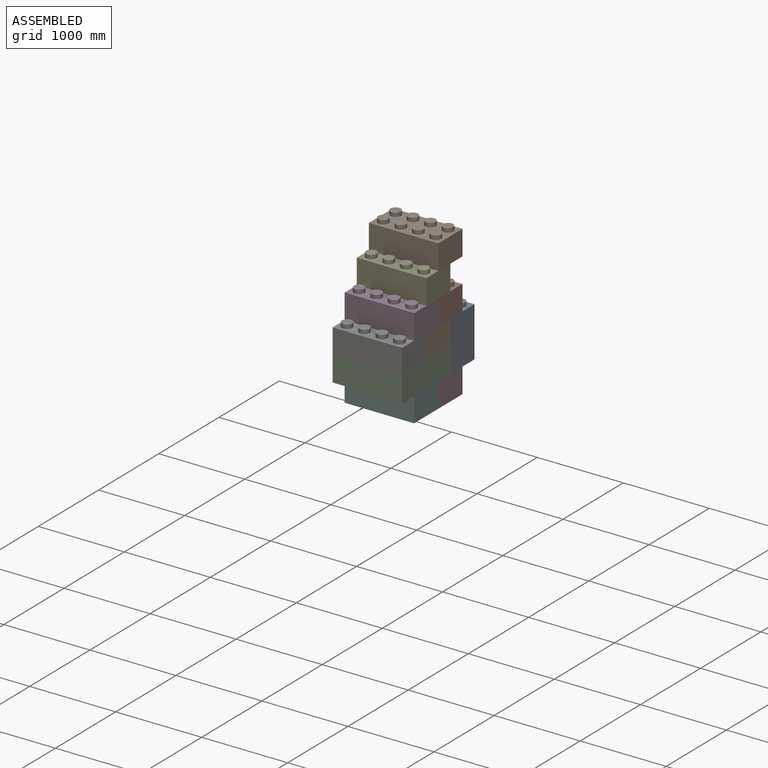
[diagram: assembled view]
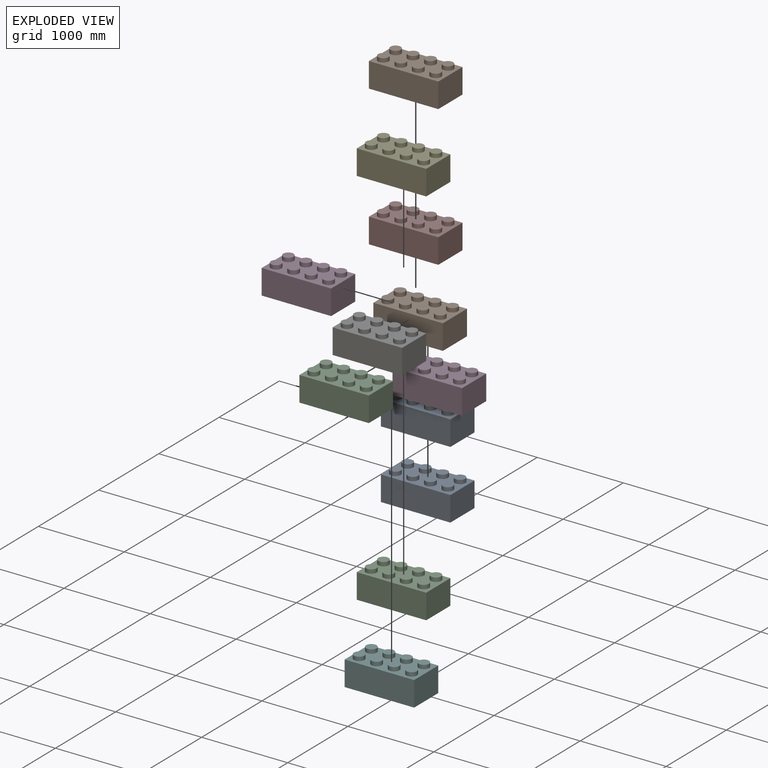
[diagram: exploded view]
GUIDED TOUR — MATED ASSEMBLY (Onshape document 39877093bb160a37c1627cb5, AutoMate assembly 39877093bb160a37c1627cb5_6b8d1fcd9c8a42bb2dc55720_84a89f708c3a7135c52a8057_default)

This assembly has 12 components, labeled P0..P11 below (a component is one placed occurrence of a part; the same part can appear more than once), held together by 27 mates. A mate is a constraint between two components; its type names the relative motion it leaves free:
  PLANAR — leaves sliding in the plane through the listed point (normal = the listed direction) and rotation about that normal free.
Axis/direction vectors are unit vectors and 'through' points are millimeter coordinates, both in the assembly's world frame.

MATES
  1. PLANAR "Planar 2": P11 <-> P7, direction (-1.000, 0.000, 0.000) through (-490.59, -152.22, 704.03) mm
  2. PLANAR "Planar 6": P11 <-> P7, direction (0.000, 0.000, -1.000) through (-460.11, 17.96, 559.25) mm
  3. PLANAR "Planar 1": P10 <-> P2, direction (0.000, 1.000, 0.000) through (-86.73, -152.22, 124.91) mm
  4. PLANAR "Planar 12": P4 <-> P11, direction (0.000, 0.000, -1.000) through (-86.73, 48.44, 848.81) mm
  5. PLANAR "Planar 2": P5 <-> P3, direction (-1.000, 0.000, 0.000) through (-490.59, -152.22, -164.65) mm
  6. PLANAR "Planar 10": P5 <-> P10, direction (0.000, 0.000, 1.000) through (-86.73, -152.22, -19.87) mm
  7. PLANAR "Planar 6": P6 <-> P1, direction (0.000, 0.000, -1.000) through (-460.11, -182.70, 269.69) mm
  8. PLANAR "Planar 5": P0 <-> P2, direction (0.000, 0.000, -1.000) through (-460.11, 279.58, -19.87) mm
  9. PLANAR "Planar 14": P9 <-> P4, direction (0.000, 0.000, -1.000) through (-86.73, 249.10, 1138.37) mm
  10. PLANAR "Planar 15": P9 <-> P4, direction (0.000, -1.000, 0.000) through (-86.73, 48.44, 1283.15) mm
  11. PLANAR "Planar 3": P0 <-> P2, direction (0.000, -1.000, 0.000) through (-86.73, 249.10, 124.91) mm
  12. PLANAR "Planar 9": P11 <-> P6, direction (0.000, -1.000, 0.000) through (-86.73, -352.88, 704.03) mm
  13. PLANAR "Planar 13": P4 <-> P11, direction (0.000, -1.000, 0.000) through (-86.73, -152.22, 993.59) mm
  14. PLANAR "Planar 7": P8 <-> P0, direction (0.000, 0.000, -1.000) through (-86.73, 449.76, 269.69) mm
  15. PLANAR "Planar 1": P6 <-> P1, direction (0.000, 1.000, 0.000) through (-86.73, -152.22, 414.47) mm
  16. PLANAR "Planar 5": P8 <-> P1, direction (0.000, 0.000, -1.000) through (-460.11, 279.58, 269.69) mm
  17. PLANAR "Planar 2": P10 <-> P2, direction (-1.000, 0.000, 0.000) through (-490.59, -352.88, 124.91) mm
  18. PLANAR "Planar 4": P8 <-> P1, direction (-1.000, 0.000, 0.000) through (-490.59, 449.76, 414.47) mm
  19. PLANAR "Planar 3": P8 <-> P1, direction (0.000, -1.000, 0.000) through (-86.73, 249.10, 414.47) mm
  20. PLANAR "Planar 4": P0 <-> P2, direction (-1.000, 0.000, 0.000) through (-490.59, 449.76, 124.91) mm
  21. PLANAR "Planar 1": P11 <-> P7, direction (0.000, 1.000, 0.000) through (-86.73, 48.44, 704.03) mm
  22. PLANAR "Planar 6": P10 <-> P2, direction (0.000, 0.000, -1.000) through (-460.11, -182.70, -19.87) mm
  23. PLANAR "Planar 6": P5 <-> P3, direction (0.000, 0.000, -1.000) through (-460.11, 17.96, -309.43) mm
  24. PLANAR "Planar 1": P5 <-> P3, direction (0.000, 1.000, 0.000) through (-86.73, 48.44, -164.65) mm
  25. PLANAR "Planar 11": P5 <-> P10, direction (0.000, -1.000, 0.000) through (-86.73, -352.88, -164.65) mm
  26. PLANAR "Planar 8": P7 <-> P1, direction (0.000, 0.000, -1.000) through (-86.73, 249.10, 559.25) mm
  27. PLANAR "Planar 2": P6 <-> P1, direction (-1.000, 0.000, 0.000) through (-490.59, -352.88, 414.47) mm

ASSEMBLY ORDER
  1. P6 — the base component [order verified]
  2. P1 [order verified]
  3. P8 [order verified]
  4. P0 [order verified]
  5. P2 [order verified]
  6. P10 [order verified]
  7. P7 [order verified]
  8. P11 [order verified]
  9. P4 [order verified]
  10. P3 [order verified]
  11. P5 [order verified]
  12. P9 [order verified]
Order-tag legend:
  [order verified] — this step's position reverses a verified removal order: the component was checked to insert without passing through the ones already placed.

Of the 12 components, 12 carry the full construction recipe — the FeatureScript program that regenerates the part's solid from scratch; the rest are supplied as boundary geometry only.
Each toured component is shown spotlighted twice — in the assembled view, then in the exploded view, where a leader line traces a displaced component back to its assembled socket (saturated green if recipe-attached, orange if geometry-only; every other component desaturated gray) — followed by its recipe or geometry summary and the mates that hold it.
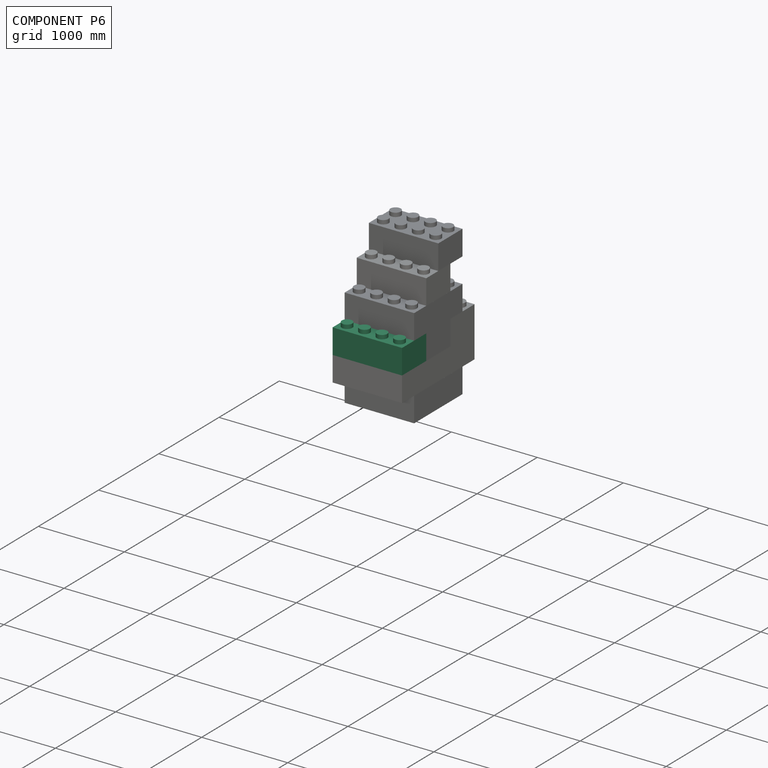
[diagram: component P6 — assembled]
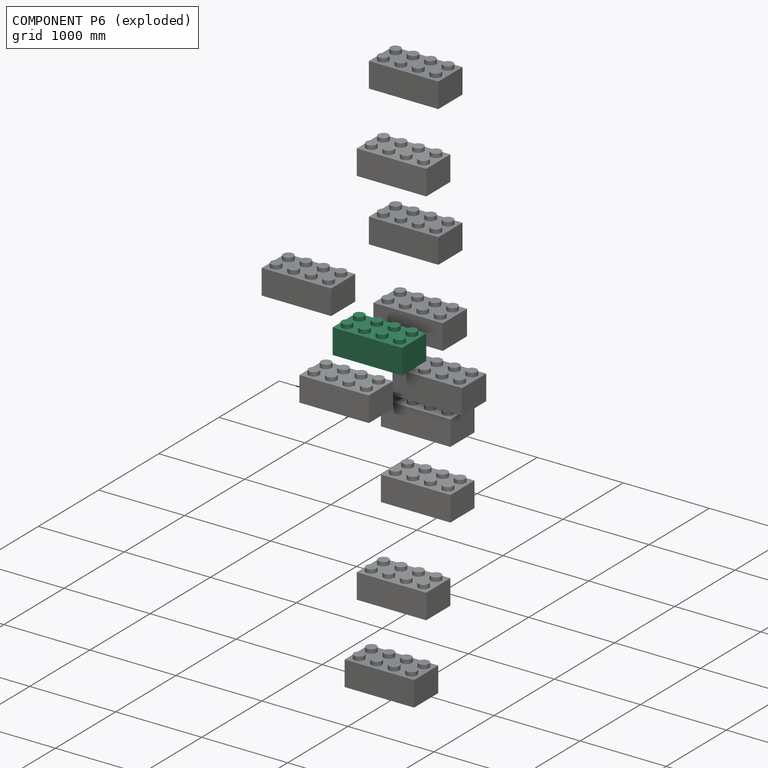
[diagram: component P6 — exploded]
COMPONENT P6 — same part as P0 (CADFS 00420289); its construction recipe is shown at P0.
Held by: PLANAR mate "Planar 6" to P1; PLANAR mate "Planar 9" to P11; PLANAR mate "Planar 1" to P1; PLANAR mate "Planar 2" to P1.
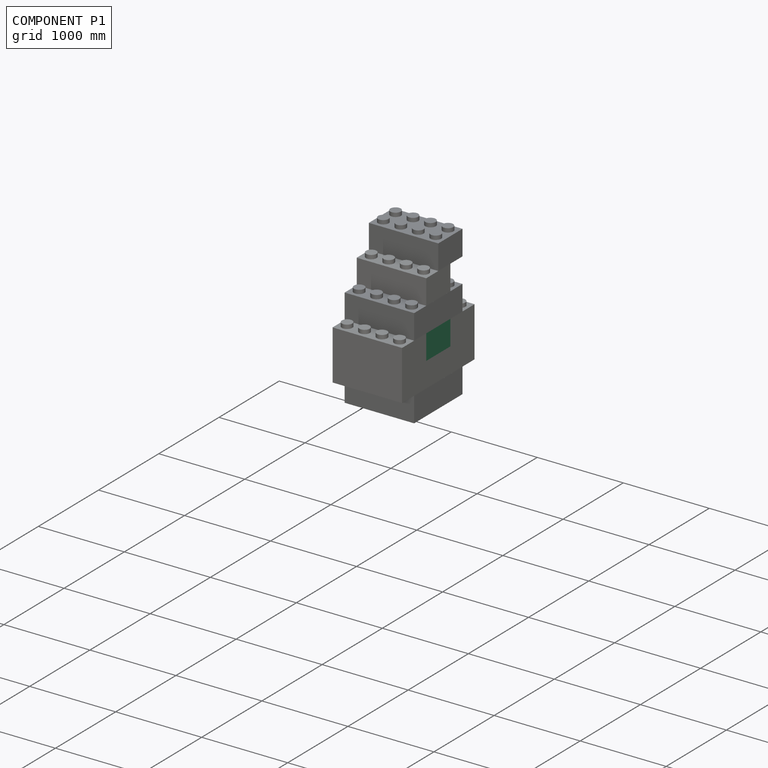
[diagram: component P1 — assembled]
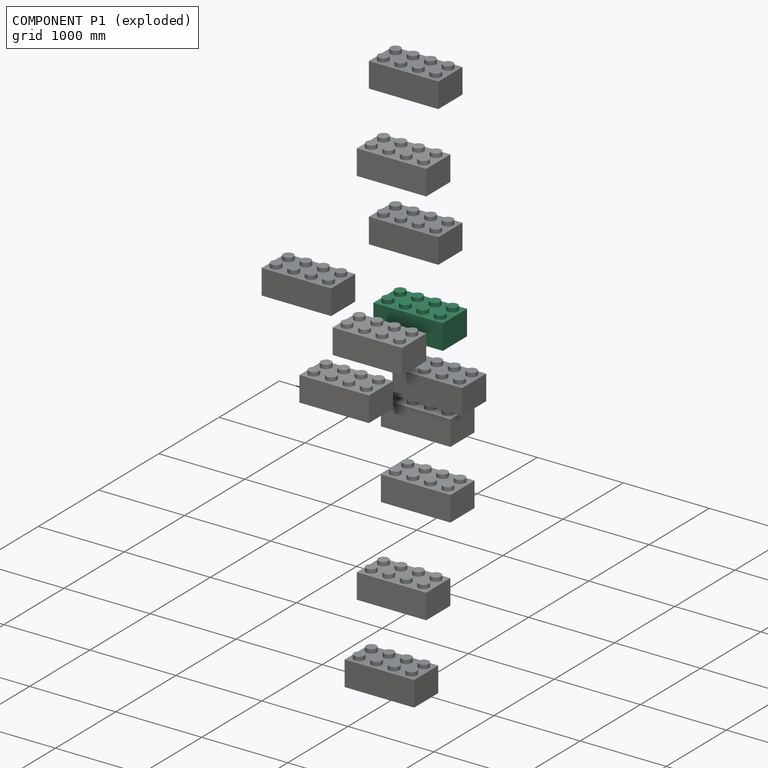
[diagram: component P1 — exploded]
COMPONENT P1 — same part as P0 (CADFS 00420289); its construction recipe is shown at P0.
Held by: PLANAR mate "Planar 6" to P6; PLANAR mate "Planar 1" to P6; PLANAR mate "Planar 5" to P8; PLANAR mate "Planar 4" to P8; PLANAR mate "Planar 3" to P8; PLANAR mate "Planar 8" to P7; PLANAR mate "Planar 2" to P6.
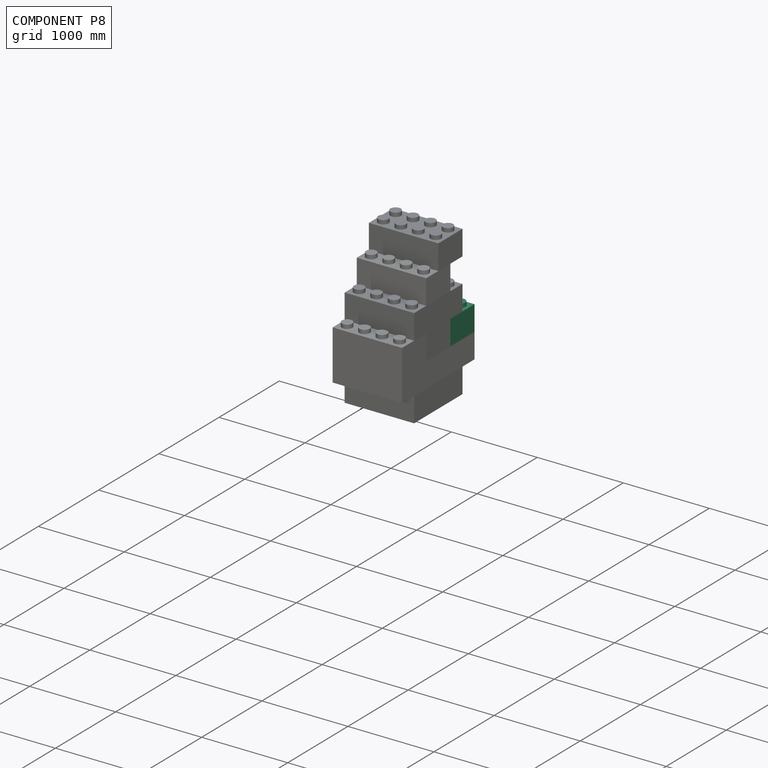
[diagram: component P8 — assembled]
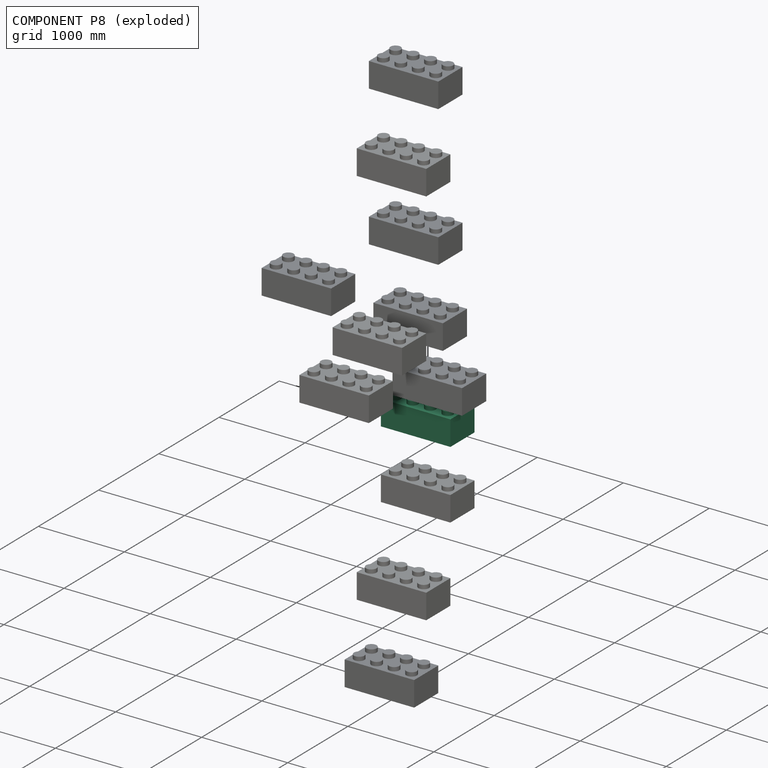
[diagram: component P8 — exploded]
COMPONENT P8 — same part as P0 (CADFS 00420289); its construction recipe is shown at P0.
Held by: PLANAR mate "Planar 7" to P0; PLANAR mate "Planar 5" to P1; PLANAR mate "Planar 4" to P1; PLANAR mate "Planar 3" to P1.
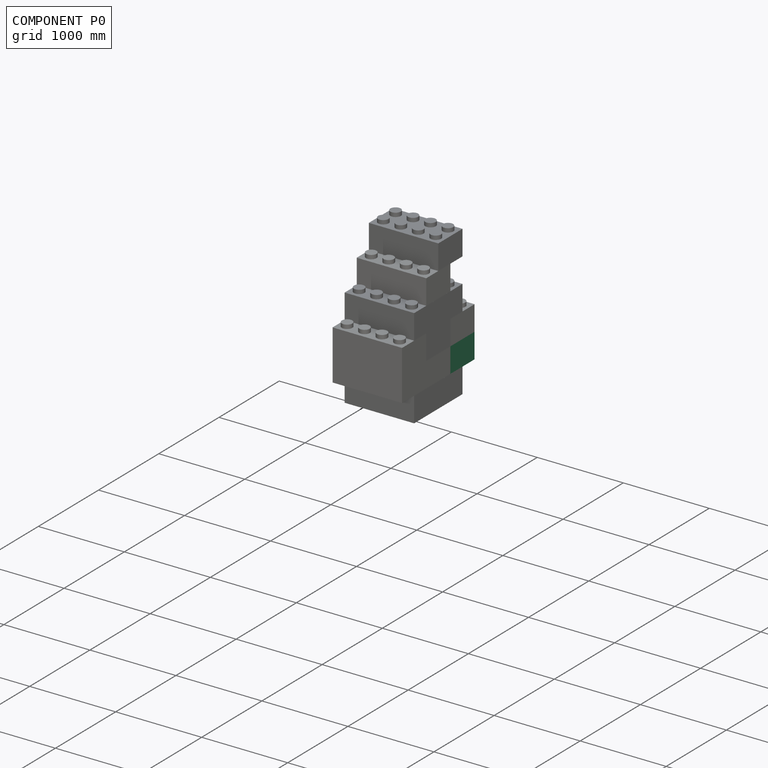
[diagram: component P0 — assembled]
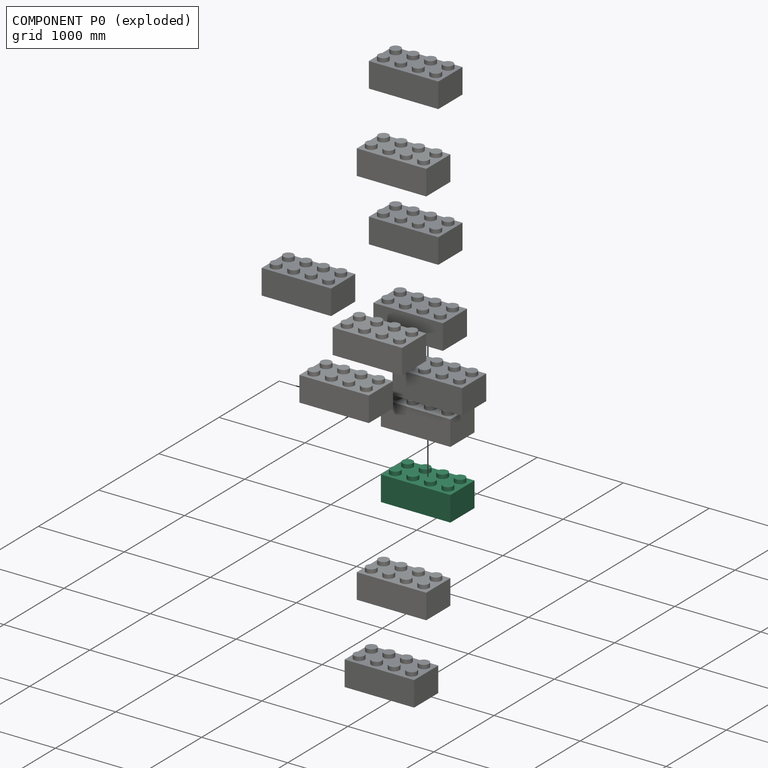
[diagram: component P0 — exploded]
COMPONENT P0 — recipe-attached (CADFS 00420289, mesh-verified: the recipe's output STEP matches this component's geometry to below the mesh-comparison resolution (tessellation chordal tolerance ~1.44 mm)).
Held by: PLANAR mate "Planar 5" to P2; PLANAR mate "Planar 3" to P2; PLANAR mate "Planar 7" to P8; PLANAR mate "Planar 4" to P2.
Construction recipe (FeatureScript — the CAD program that rebuilds this solid; sketch coordinates are in the units given by the * unit suffixes, e.g. mm):

FeatureScript 1511;
import(path : "onshape/std/geometry.fs", version : "1511.0");
import(path : "onshape/std/common.fs", version : "1511.0");
const mm = millimeter;
const VERTEX = EntityType.VERTEX;
const EDGE = EntityType.EDGE;
const FACE = EntityType.FACE;
const BODY = EntityType.BODY;
function v(x, y){return vector(x, y);}
function OD(order){return orderDisambiguation(order);}
function OSD(set){return originalSetDisambiguation(set);}
function TD(topology){return topologyDisambiguation(topology);}
function TDD(query){return trueDependencyDisambiguation(query);}
function sQuery(a, b, c) {return sketchEntityQuery(a, b, c);}

annotation { "Feature Type Name" : "Feature", "Feature Type Description" : "" }
export const myFeature = defineFeature(function(context is Context, id is Id, definition is map)
    precondition{}
    {
        {
            var Q0;
            Q0=qCreatedBy(makeId("Top.planeOp"),FACE);
            var sketch = newSketch(context, id + "F0", { "sketchPlane" : qUnion([Q0])});
            skLineSegment(sketch, "E0.bottom", {"start": v(403.86, 200.66) * mm, "end": v(-403.86, 200.66) * mm});
            skLineSegment(sketch, "E0.top", {"start": v(403.86, -200.66) * mm, "end": v(-403.86, -200.66) * mm});
            skLineSegment(sketch, "E0.left", {"start": v(403.86, 200.66) * mm, "end": v(403.86, -200.66) * mm});
            skLineSegment(sketch, "E0.right", {"start": v(-403.86, 200.66) * mm, "end": v(-403.86, -200.66) * mm});
            skPoint(sketch, "E0.middle", {"position": v(0, 0) * mm});
            skSolve(sketch);
        }
        {
            var Q0;
            Q0=makeQuery(id+"F0.imprint","IMPRINT",FACE,{"disambiguationData":[TD([[makeQuery(id+"F0.imprint","IMPRINT",EDGE,{"derivedFrom":sQuery(id+"F0.wireOp",EDGE,"E0.bottom")}),1.0]])]});
            extrude(context, id + "F1", {"entities" : qUnion([Q0]), "depth" : 289.56 * mm});
        }
        {
            var Q0;
            Q0=makeQuery(id+"F1.opExtrude","CAP_FACE",FACE,{"disambiguationData":[OSD([sQuery(id+"F0.wireOp",EDGE,"E0.bottom"),sQuery(id+"F0.wireOp",EDGE,"E0.top"),sQuery(id+"F0.wireOp",EDGE,"E0.left"),sQuery(id+"F0.wireOp",EDGE,"E0.right")])],"isStart":false});
            var sketch = newSketch(context, id + "F2", { "sketchPlane" : qUnion([Q0])});
            skCircle(sketch, "E1", {"center": v(-304.8, -101.6) * mm, "radius": 60.96 * mm});
            skCircle(sketch, "E2.1.0.0", {"center": v(-101.6, -101.6) * mm, "radius": 60.96 * mm});
            skCircle(sketch, "E2.2.0.0", {"center": v(101.6, -101.6) * mm, "radius": 60.96 * mm});
            skCircle(sketch, "E2.3.0.0", {"center": v(304.8, -101.6) * mm, "radius": 60.96 * mm});
            skLineSegment(sketch, "E2.direction1", {"start": v(-304.8, -101.6) * mm, "end": v(-101.6, -101.6) * mm, "construction": true});
            skCircle(sketch, "E3.0.1.0", {"center": v(-304.8, 101.6) * mm, "radius": 60.96 * mm});
            skLineSegment(sketch, "E3.direction1", {"start": v(-304.8, -101.6) * mm, "end": v(-304.8, -101.6) * mm});
            skLineSegment(sketch, "E3.direction2", {"start": v(-304.8, -101.6) * mm, "end": v(-304.8, 101.6) * mm, "construction": true});
            skCircle(sketch, "E4.1.0.0", {"center": v(-101.6, 101.6) * mm, "radius": 60.96 * mm});
            skCircle(sketch, "E4.2.0.0", {"center": v(101.6, 101.6) * mm, "radius": 60.96 * mm});
            skCircle(sketch, "E4.3.0.0", {"center": v(304.8, 101.6) * mm, "radius": 60.96 * mm});
            skLineSegment(sketch, "E4.direction1", {"start": v(-304.8, 101.6) * mm, "end": v(-101.6, 101.6) * mm, "construction": true});
            skSolve(sketch);
        }
        {
            var Q0;
            Q0=makeQuery(id+"F2.imprint","IMPRINT",FACE,{"disambiguationData":[TD([[makeQuery(id+"F2.imprint","IMPRINT",EDGE,{"derivedFrom":sQuery(id+"F2.wireOp",EDGE,"E1")}),1.0]])]});
            var Q1;
            Q1=makeQuery(id+"F2.imprint","IMPRINT",FACE,{"disambiguationData":[TD([[makeQuery(id+"F2.imprint","IMPRINT",EDGE,{"derivedFrom":sQuery(id+"F2.wireOp",EDGE,"E3.0.1.0")}),1.0]])]});
            var Q2;
            Q2=makeQuery(id+"F2.imprint","IMPRINT",FACE,{"disambiguationData":[TD([[makeQuery(id+"F2.imprint","IMPRINT",EDGE,{"derivedFrom":sQuery(id+"F2.wireOp",EDGE,"E4.1.0.0")}),1.0]])]});
            var Q3;
            Q3=makeQuery(id+"F2.imprint","IMPRINT",FACE,{"disambiguationData":[TD([[makeQuery(id+"F2.imprint","IMPRINT",EDGE,{"derivedFrom":sQuery(id+"F2.wireOp",EDGE,"E2.1.0.0")}),1.0]])]});
            var Q4;
            Q4=makeQuery(id+"F2.imprint","IMPRINT",FACE,{"disambiguationData":[TD([[makeQuery(id+"F2.imprint","IMPRINT",EDGE,{"derivedFrom":sQuery(id+"F2.wireOp",EDGE,"E2.2.0.0")}),1.0]])]});
            var Q5;
            Q5=makeQuery(id+"F2.imprint","IMPRINT",FACE,{"disambiguationData":[TD([[makeQuery(id+"F2.imprint","IMPRINT",EDGE,{"derivedFrom":sQuery(id+"F2.wireOp",EDGE,"E4.2.0.0")}),1.0]])]});
            var Q6;
            Q6=makeQuery(id+"F2.imprint","IMPRINT",FACE,{"disambiguationData":[TD([[makeQuery(id+"F2.imprint","IMPRINT",EDGE,{"derivedFrom":sQuery(id+"F2.wireOp",EDGE,"E4.3.0.0")}),1.0]])]});
            var Q7;
            Q7=makeQuery(id+"F2.imprint","IMPRINT",FACE,{"disambiguationData":[TD([[makeQuery(id+"F2.imprint","IMPRINT",EDGE,{"derivedFrom":sQuery(id+"F2.wireOp",EDGE,"E2.3.0.0")}),1.0]])]});
            extrude(context, id + "F3", {"entities" : qUnion([Q0, Q1, Q2, Q3, Q4, Q5, Q6, Q7]), "operationType" : NewBodyOperationType.ADD, "depth" : 45.72 * mm});
        }
        {
            var Q0;
            Q0=makeQuery(id+"F1.opExtrude","CAP_FACE",FACE,{"disambiguationData":[OSD([sQuery(id+"F0.wireOp",EDGE,"E0.bottom"),sQuery(id+"F0.wireOp",EDGE,"E0.top"),sQuery(id+"F0.wireOp",EDGE,"E0.left"),sQuery(id+"F0.wireOp",EDGE,"E0.right")])],"isStart":true});
            var sketch = newSketch(context, id + "F4", { "sketchPlane" : qUnion([Q0])});
            skLineSegment(sketch, "E5.bottom", {"start": v(373.38, 170.18) * mm, "end": v(-373.38, 170.18) * mm});
            skLineSegment(sketch, "E5.top", {"start": v(373.38, -170.18) * mm, "end": v(-373.38, -170.18) * mm});
            skLineSegment(sketch, "E5.left", {"start": v(373.38, 170.18) * mm, "end": v(373.38, -170.18) * mm});
            skLineSegment(sketch, "E5.right", {"start": v(-373.38, 170.18) * mm, "end": v(-373.38, -170.18) * mm});
            skPoint(sketch, "E5.middle", {"position": v(0, 0) * mm});
            skSolve(sketch);
        }
        {
            var Q0;
            Q0=makeQuery(id+"F4.imprint","IMPRINT",FACE,{"disambiguationData":[TD([[makeQuery(id+"F4.imprint","IMPRINT",EDGE,{"derivedFrom":sQuery(id+"F4.wireOp",EDGE,"E5.bottom")}),1.0]])]});
            extrude(context, id + "F5", {"entities" : qUnion([Q0]), "operationType" : NewBodyOperationType.REMOVE, "oppositeDirection" : true, "depth" : 218.44 * mm});
        }
        {
            var Q0;
            Q0=makeQuery(id+"F5.boolean.opBoolean","COPY",FACE,{"derivedFrom":makeQuery(id+"F5.opExtrude","CAP_FACE",FACE,{"disambiguationData":[OSD([sQuery(id+"F4.wireOp",EDGE,"E5.bottom"),sQuery(id+"F4.wireOp",EDGE,"E5.top"),sQuery(id+"F4.wireOp",EDGE,"E5.left"),sQuery(id+"F4.wireOp",EDGE,"E5.right")])],"isStart":false})});
            var sketch = newSketch(context, id + "F6", { "sketchPlane" : qUnion([Q0])});
            skCircle(sketch, "E6", {"center": v(0, 0) * mm, "radius": 82.68 * mm});
            skCircle(sketch, "E7", {"center": v(0, 0) * mm, "radius": 60.96 * mm});
            skCircle(sketch, "E8.1.0.0", {"center": v(203.2, 0) * mm, "radius": 60.96 * mm});
            skCircle(sketch, "E8.1.0.1", {"center": v(203.2, 0) * mm, "radius": 82.68 * mm});
            skLineSegment(sketch, "E8.direction1", {"start": v(0, 0) * mm, "end": v(203.2, 0) * mm, "construction": true});
            skCircle(sketch, "E9.1.0.0", {"center": v(-203.2, 0) * mm, "radius": 60.96 * mm});
            skCircle(sketch, "E9.1.0.1", {"center": v(-203.2, 0) * mm, "radius": 82.68 * mm});
            skLineSegment(sketch, "E9.direction1", {"start": v(0, 0) * mm, "end": v(-203.2, 0) * mm, "construction": true});
            skSolve(sketch);
        }
        {
            var Q0;
            Q0=makeQuery(id+"F6.imprint","IMPRINT",FACE,{"disambiguationData":[TD([[makeQuery(id+"F6.imprint","IMPRINT",EDGE,{"derivedFrom":sQuery(id+"F6.wireOp",EDGE,"E9.1.0.0")}),-1.0]])]});
            var Q1;
            Q1=makeQuery(id+"F6.imprint","IMPRINT",FACE,{"disambiguationData":[TD([[makeQuery(id+"F6.imprint","IMPRINT",EDGE,{"derivedFrom":sQuery(id+"F6.wireOp",EDGE,"E6")}),1.0]])]});
            var Q2;
            Q2=makeQuery(id+"F6.imprint","IMPRINT",FACE,{"disambiguationData":[TD([[makeQuery(id+"F6.imprint","IMPRINT",EDGE,{"derivedFrom":sQuery(id+"F6.wireOp",EDGE,"E8.1.0.0")}),-1.0]])]});
            extrude(context, id + "F7", {"entities" : qUnion([Q0, Q1, Q2]), "operationType" : NewBodyOperationType.ADD, "depth" : 218.44 * mm});
        }
    });
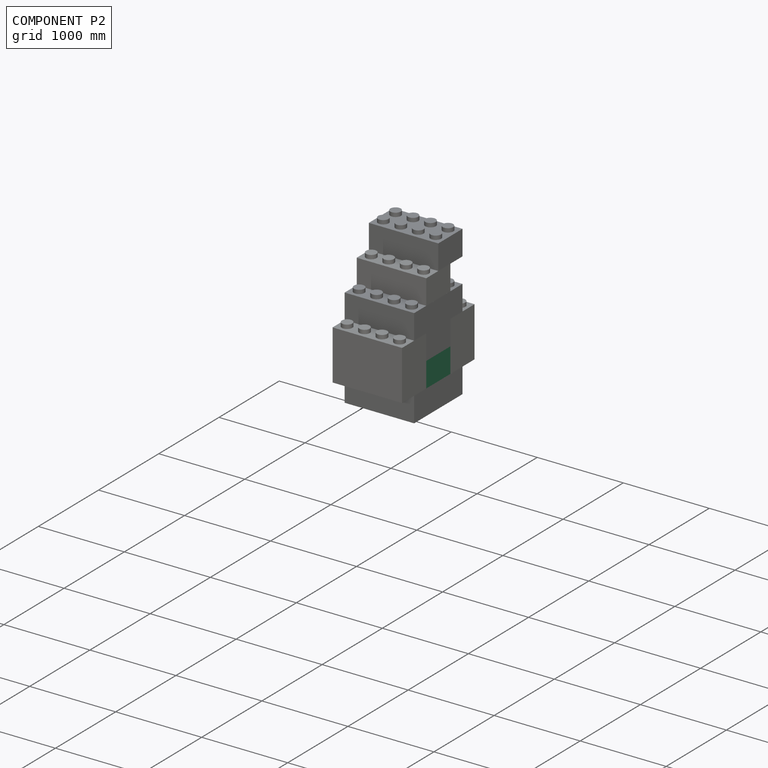
[diagram: component P2 — assembled]
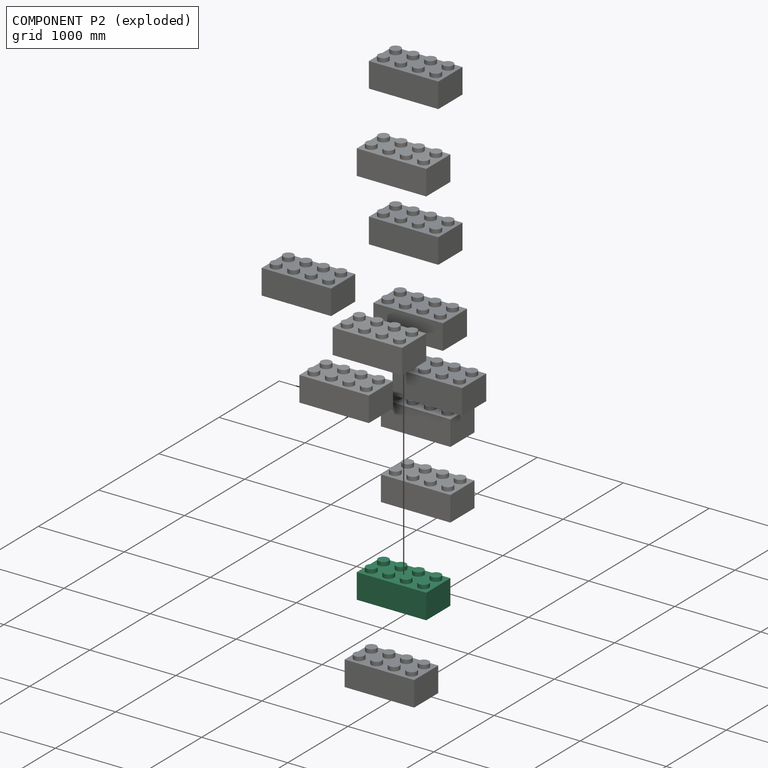
[diagram: component P2 — exploded]
COMPONENT P2 — same part as P0 (CADFS 00420289); its construction recipe is shown at P0.
Held by: PLANAR mate "Planar 1" to P10; PLANAR mate "Planar 5" to P0; PLANAR mate "Planar 3" to P0; PLANAR mate "Planar 2" to P10; PLANAR mate "Planar 4" to P0; PLANAR mate "Planar 6" to P10.
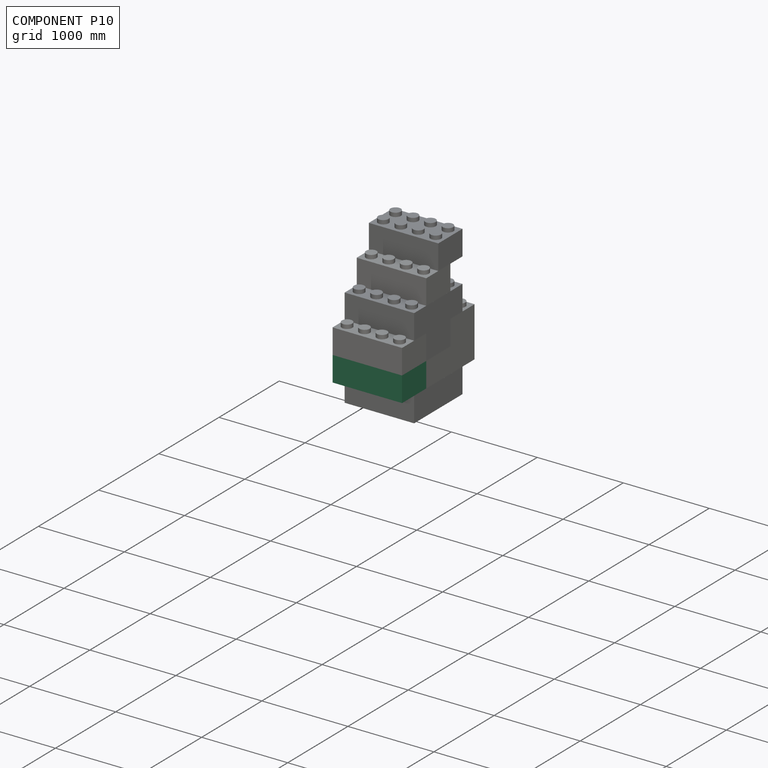
[diagram: component P10 — assembled]
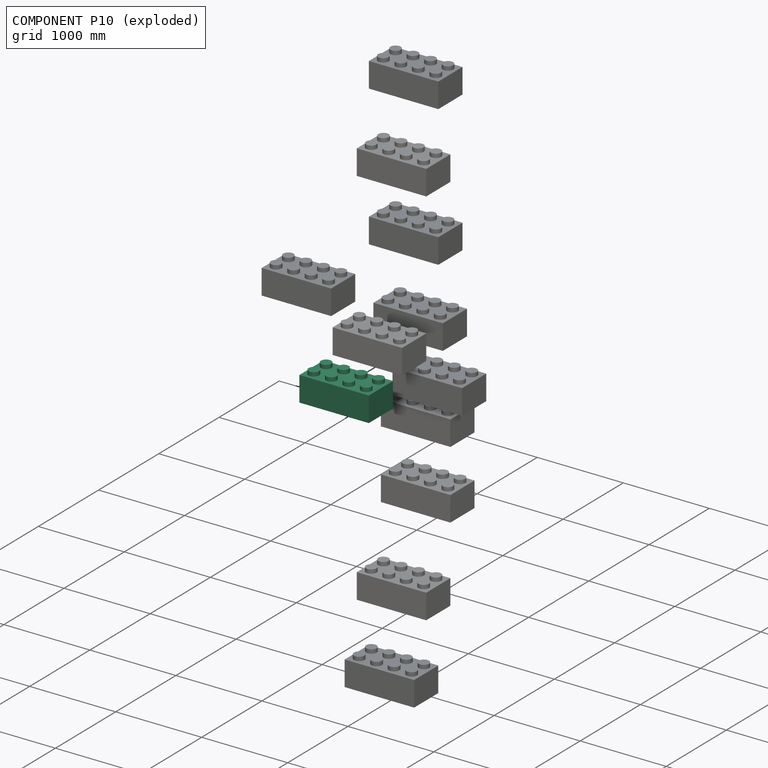
[diagram: component P10 — exploded]
COMPONENT P10 — same part as P0 (CADFS 00420289); its construction recipe is shown at P0.
Held by: PLANAR mate "Planar 1" to P2; PLANAR mate "Planar 10" to P5; PLANAR mate "Planar 2" to P2; PLANAR mate "Planar 6" to P2; PLANAR mate "Planar 11" to P5.
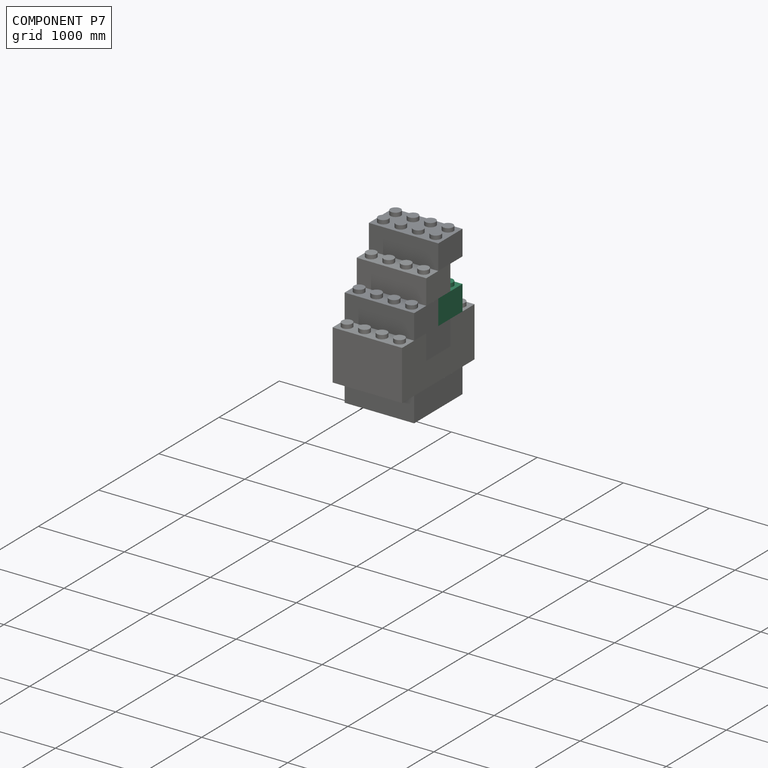
[diagram: component P7 — assembled]
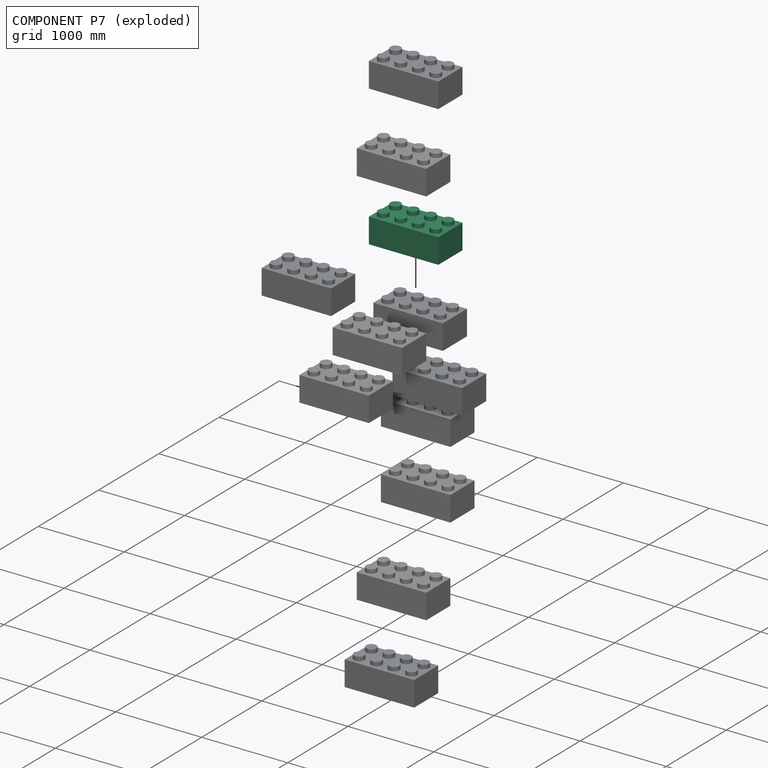
[diagram: component P7 — exploded]
COMPONENT P7 — same part as P0 (CADFS 00420289); its construction recipe is shown at P0.
Held by: PLANAR mate "Planar 2" to P11; PLANAR mate "Planar 6" to P11; PLANAR mate "Planar 1" to P11; PLANAR mate "Planar 8" to P1.
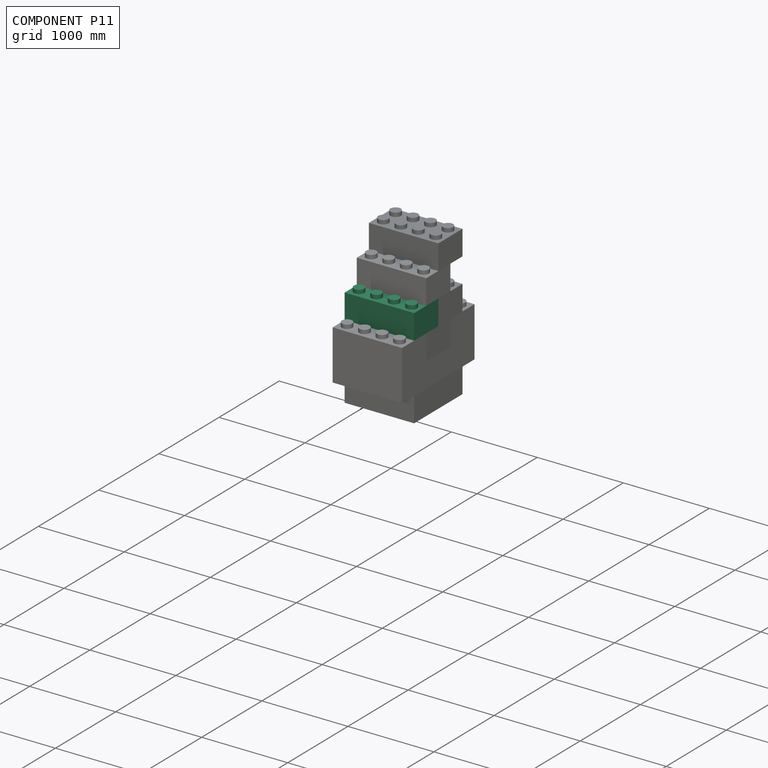
[diagram: component P11 — assembled]
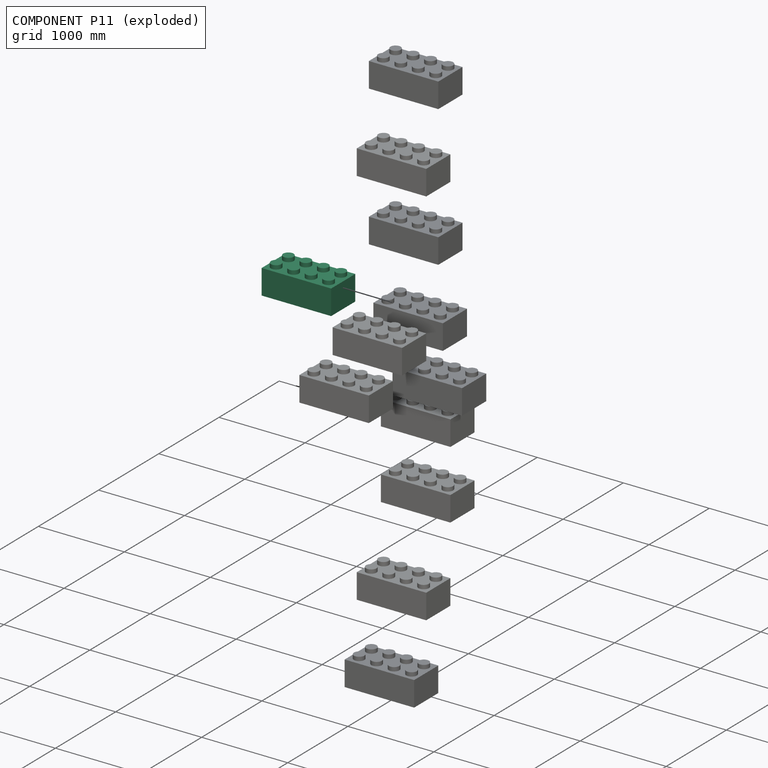
[diagram: component P11 — exploded]
COMPONENT P11 — same part as P0 (CADFS 00420289); its construction recipe is shown at P0.
Held by: PLANAR mate "Planar 2" to P7; PLANAR mate "Planar 6" to P7; PLANAR mate "Planar 12" to P4; PLANAR mate "Planar 9" to P6; PLANAR mate "Planar 13" to P4; PLANAR mate "Planar 1" to P7.
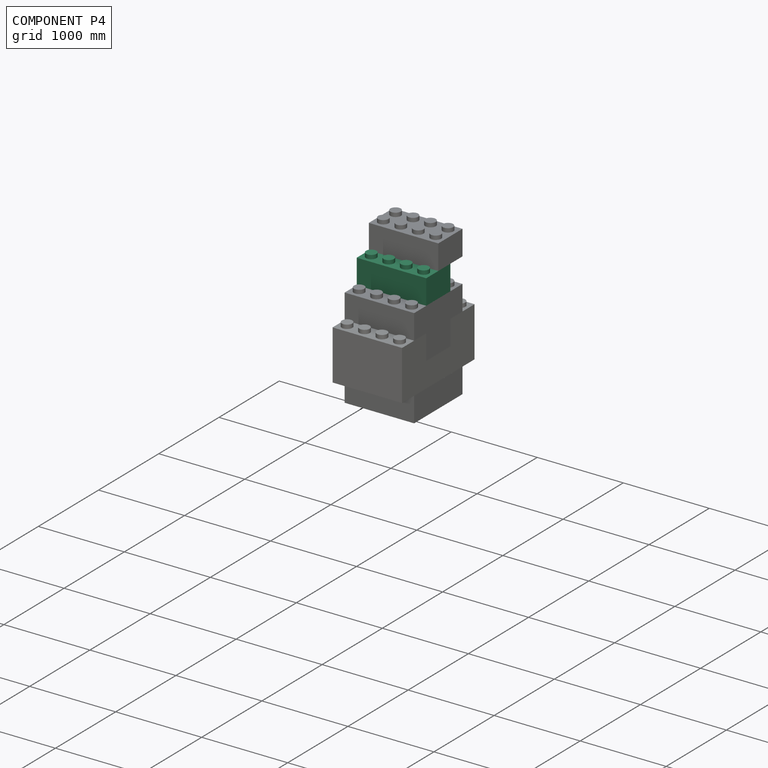
[diagram: component P4 — assembled]
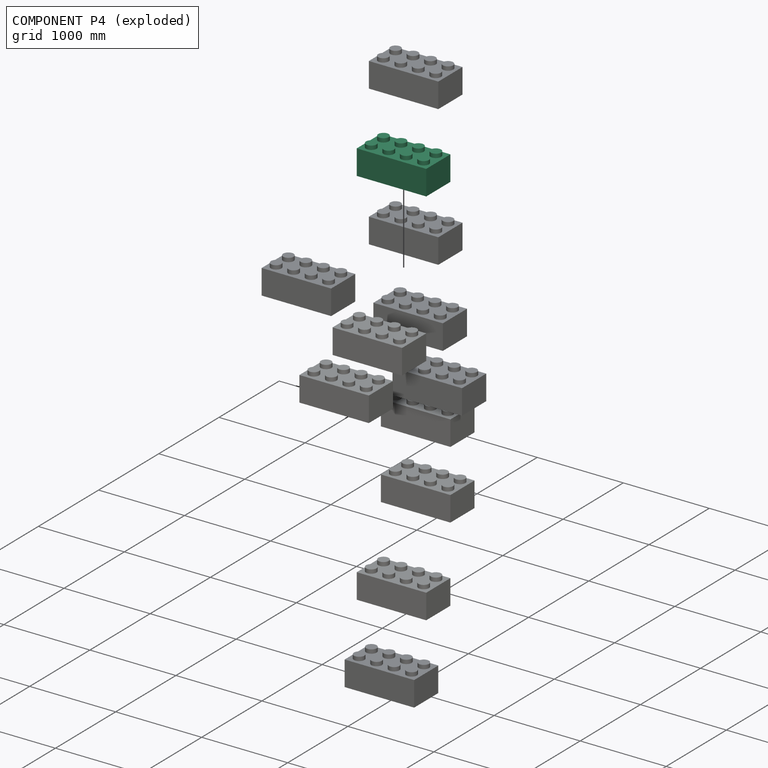
[diagram: component P4 — exploded]
COMPONENT P4 — same part as P0 (CADFS 00420289); its construction recipe is shown at P0.
Held by: PLANAR mate "Planar 12" to P11; PLANAR mate "Planar 14" to P9; PLANAR mate "Planar 15" to P9; PLANAR mate "Planar 13" to P11.
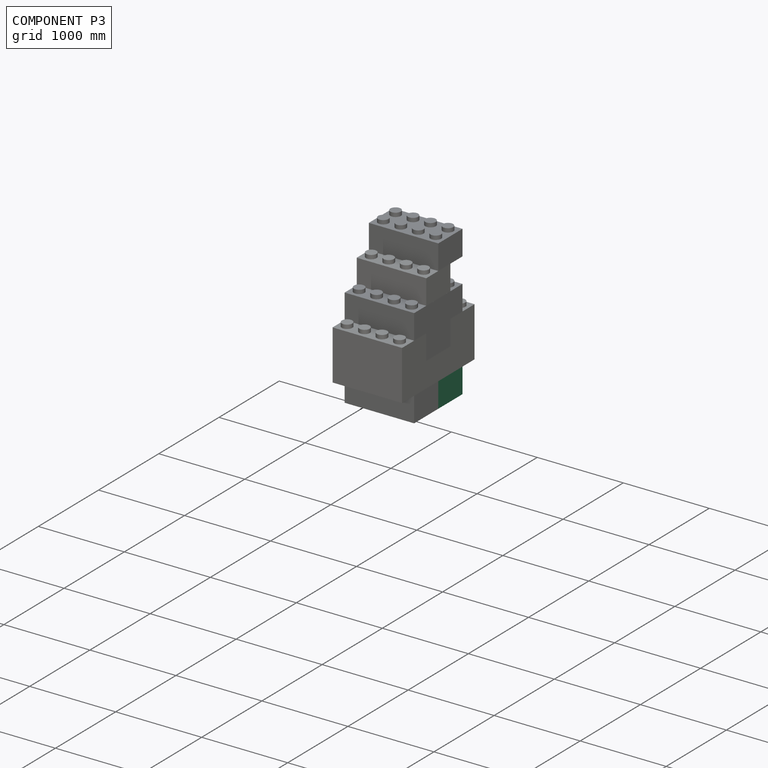
[diagram: component P3 — assembled]
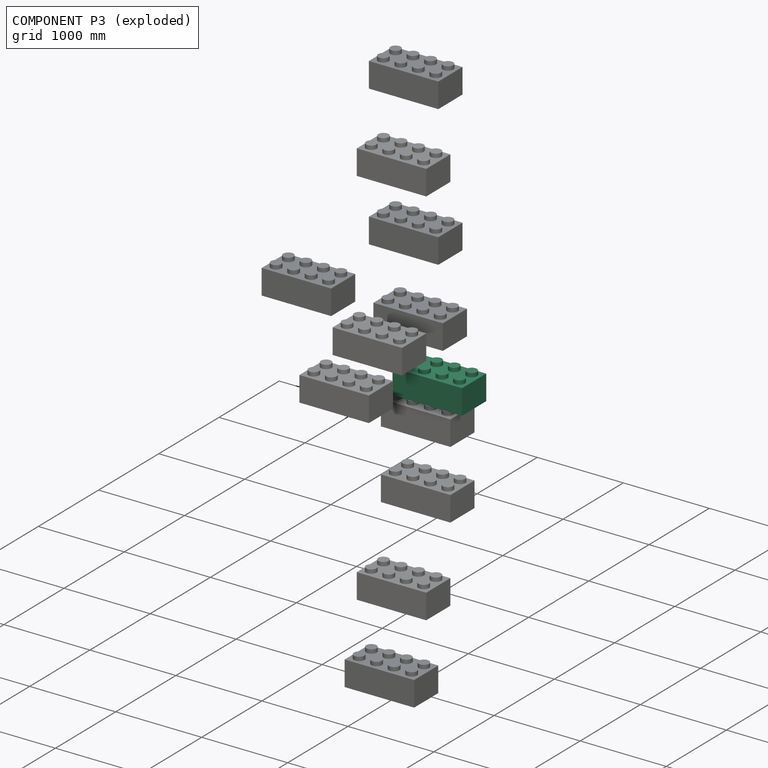
[diagram: component P3 — exploded]
COMPONENT P3 — same part as P0 (CADFS 00420289); its construction recipe is shown at P0.
Held by: PLANAR mate "Planar 2" to P5; PLANAR mate "Planar 6" to P5; PLANAR mate "Planar 1" to P5.
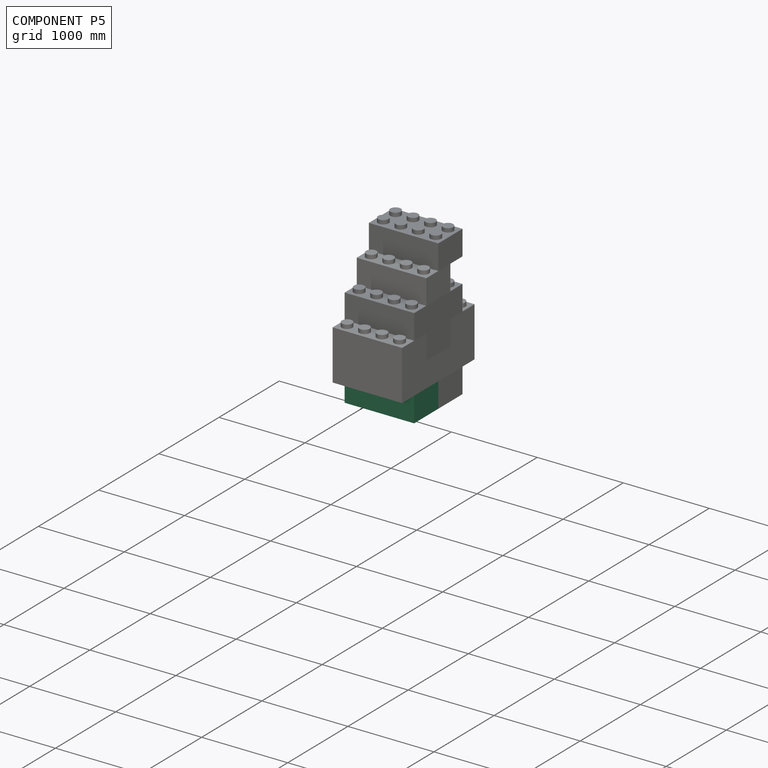
[diagram: component P5 — assembled]
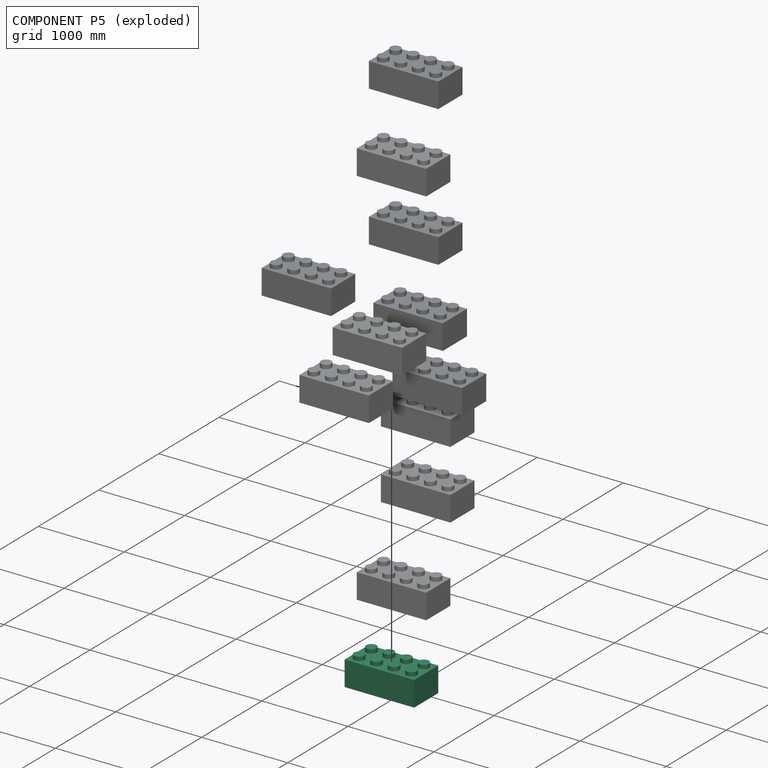
[diagram: component P5 — exploded]
COMPONENT P5 — same part as P0 (CADFS 00420289); its construction recipe is shown at P0.
Held by: PLANAR mate "Planar 2" to P3; PLANAR mate "Planar 10" to P10; PLANAR mate "Planar 6" to P3; PLANAR mate "Planar 1" to P3; PLANAR mate "Planar 11" to P10.
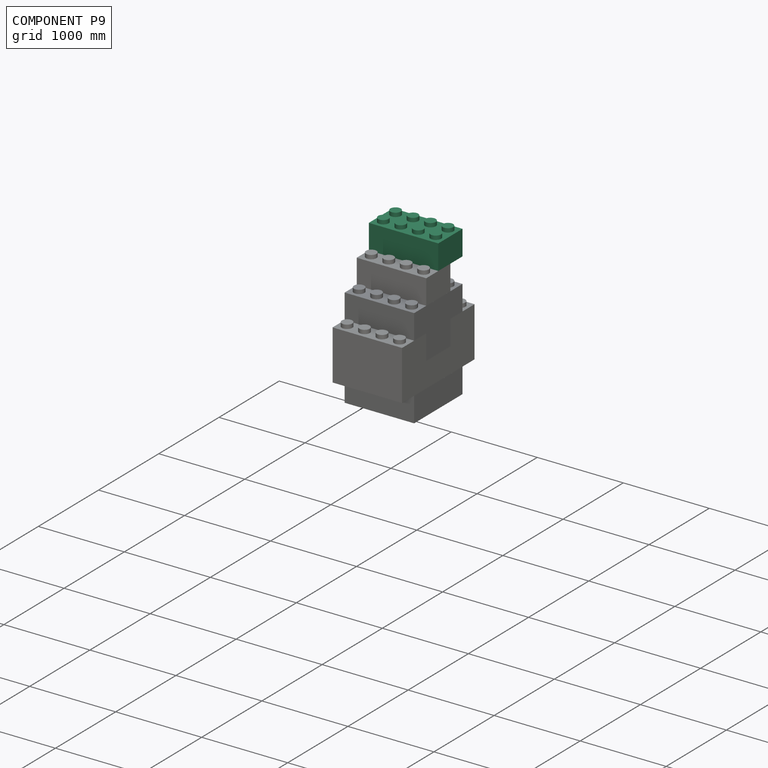
[diagram: component P9 — assembled]
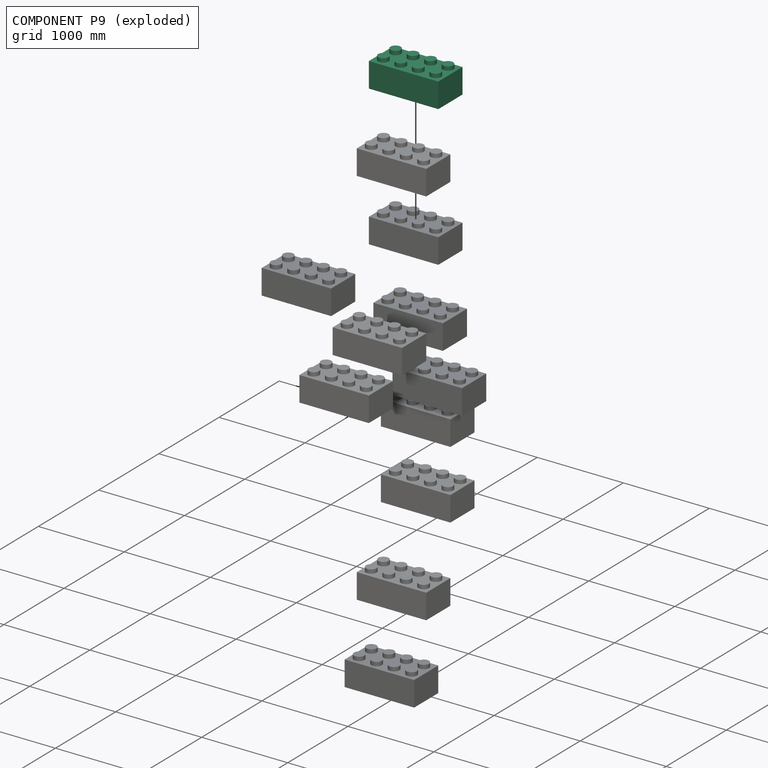
[diagram: component P9 — exploded]
COMPONENT P9 — same part as P0 (CADFS 00420289); its construction recipe is shown at P0.
Held by: PLANAR mate "Planar 14" to P4; PLANAR mate "Planar 15" to P4.
PROVENANCE & LICENSES
Assembly (occurrences, transforms, mates, per-part STEP geometry): AutoMate dataset, Zenodo record 7776208, CC0.
Construction recipes: CADFS (HuggingFace VladPyatov/CADFS, CC-BY-4.0, layered over the ABC dataset), FeatureScript reconstruction programs keyed by ABC model id.
Join: ABC meta listings map ABC model id -> Onshape documentId; within a shared document, parts are matched by geometric signature (bounding-box dims + volume at 0.1% relative tolerance, exact B-rep face/solid counts).
Verification: 12 of this assembly's 12 components carry a recipe attachment, and every attachment is mesh-verified: the CADFS STEP and the AutoMate member STEP were compared as meshes in their shared local frame (symmetric sampled-point-to-mesh distance); worst across the 12 attachments: below the mesh-comparison resolution (tessellation chordal tolerance ~1.44 mm) on a 962 mm part.
Renders: orthographic iso camera (az 35 / el 25); the floor grid conveys scale (grid pitch printed in each image; no ruler). In the exploded view each component is displaced by its stored offset vector: the offsets alone carry the explosion direction (mate normal/axis signs are not orientation cues and do not encode it), and separation distances are assigned per mate-chain, not proportionally to assembly-order depth.
